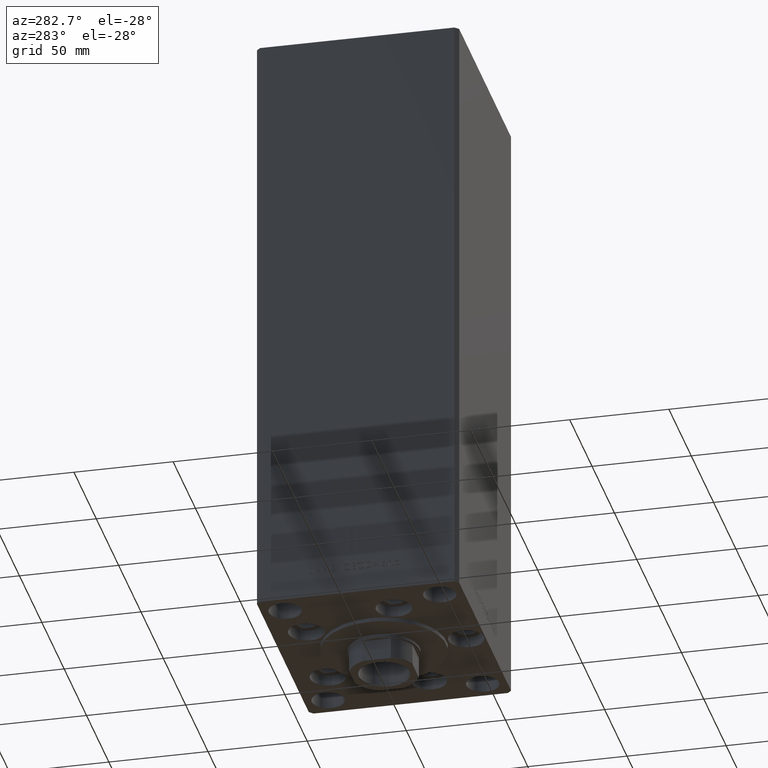
[diagram: clean part render]
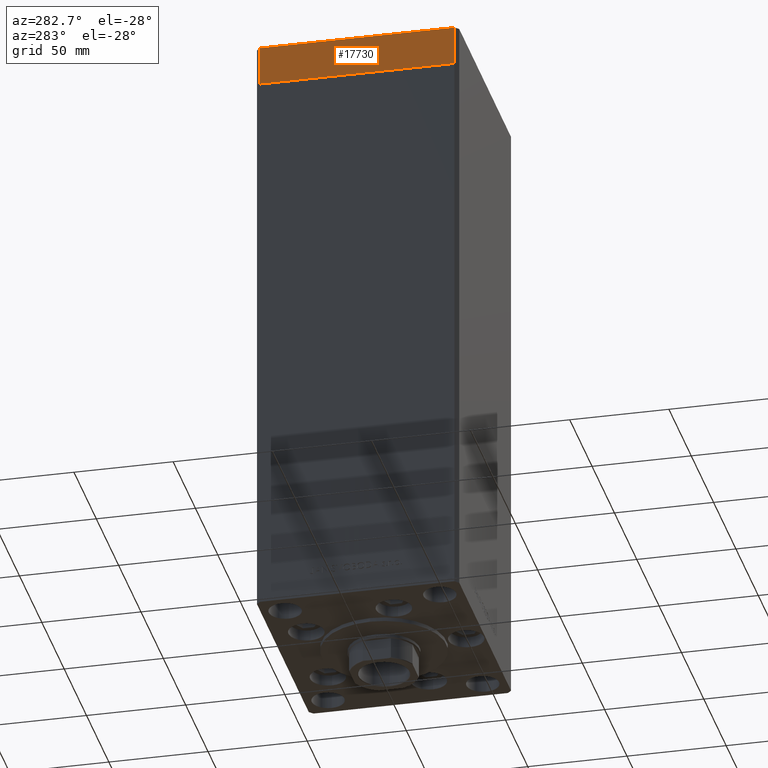
[diagram: same view with one face highlighted and labeled with its STEP entity id]
A machine part, auxiliary view. The second image highlights one B-rep face of the part: STEP entity #17730.
In plain terms, the highlighted planar face has unit normal (-1, 0, 0).
Its self-contained STEP definition (entity closure, byte-faithful):
#519 = CARTESIAN_POINT ( 'NONE',  ( -60.00000000000000000, 48.99999999999995737, -20.00000000000000000 ) ) ;
#2548 = CARTESIAN_POINT ( 'NONE',  ( -60.00000000000000000, 48.99999999999995737, 0.000000000000000000 ) ) ;
#3255 = VERTEX_POINT ( 'NONE', #39254 ) ;
#4088 = LINE ( 'NONE', #46557, #17501 ) ;
#5538 = ORIENTED_EDGE ( 'NONE', *, *, #13853, .T. ) ;
#10014 = CARTESIAN_POINT ( 'NONE',  ( -60.00000000000000000, -49.00000000000000000, -20.00000000000000000 ) ) ;
#13030 = DIRECTION ( 'NONE',  ( 0.000000000000000000, 0.000000000000000000, 1.000000000000000000 ) ) ;
#13044 = CARTESIAN_POINT ( 'NONE',  ( -60.00000000000000000, 48.99999999999995737, -20.00000000000000000 ) ) ;
#13664 = VERTEX_POINT ( 'NONE', #13044 ) ;
#13853 = EDGE_CURVE ( 'NONE', #13664, #27702, #4088, .T. ) ;
#14041 = EDGE_CURVE ( 'NONE', #24083, #3255, #17457, .T. ) ;
#15015 = EDGE_LOOP ( 'NONE', ( #38850, #42434, #5538, #26254 ) ) ;
#15186 = DIRECTION ( 'NONE',  ( 0.000000000000000000, 0.000000000000000000, 1.000000000000000000 ) ) ;
#17104 = CARTESIAN_POINT ( 'NONE',  ( -60.00000000000000000, 48.99999999999995737, -20.00000000000000000 ) ) ;
#17457 = LINE ( 'NONE', #2548, #28601 ) ;
#17501 = VECTOR ( 'NONE', #27196, 1000.000000000000000 ) ;
#17730 = ADVANCED_FACE ( 'NONE', ( #30561 ), #43697, .T. ) ;
#19157 = LINE ( 'NONE', #519, #25188 ) ;
#20743 = LINE ( 'NONE', #44103, #38729 ) ;
#21086 = DIRECTION ( 'NONE',  ( -1.000000000000000000, 0.000000000000000000, 0.000000000000000000 ) ) ;
#24083 = VERTEX_POINT ( 'NONE', #46831 ) ;
#25188 = VECTOR ( 'NONE', #15186, 1000.000000000000000 ) ;
#26254 = ORIENTED_EDGE ( 'NONE', *, *, #47026, .T. ) ;
#27196 = DIRECTION ( 'NONE',  ( 0.000000000000000000, -1.000000000000000000, 0.000000000000000000 ) ) ;
#27702 = VERTEX_POINT ( 'NONE', #10014 ) ;
#28601 = VECTOR ( 'NONE', #32858, 1000.000000000000000 ) ;
#30561 = FACE_OUTER_BOUND ( 'NONE', #15015, .T. ) ;
#32858 = DIRECTION ( 'NONE',  ( 0.000000000000000000, -1.000000000000000000, 0.000000000000000000 ) ) ;
#36247 = DIRECTION ( 'NONE',  ( 0.000000000000000000, 0.000000000000000000, 1.000000000000000000 ) ) ;
#38729 = VECTOR ( 'NONE', #13030, 1000.000000000000000 ) ;
#38850 = ORIENTED_EDGE ( 'NONE', *, *, #14041, .F. ) ;
#39254 = CARTESIAN_POINT ( 'NONE',  ( -60.00000000000000000, -49.00000000000000000, 0.000000000000000000 ) ) ;
#42434 = ORIENTED_EDGE ( 'NONE', *, *, #45352, .F. ) ;
#43697 = PLANE ( 'NONE',  #44621 ) ;
#44103 = CARTESIAN_POINT ( 'NONE',  ( -60.00000000000000000, -49.00000000000000000, -20.00000000000000000 ) ) ;
#44621 = AXIS2_PLACEMENT_3D ( 'NONE', #17104, #21086, #36247 ) ;
#45352 = EDGE_CURVE ( 'NONE', #13664, #24083, #19157, .T. ) ;
#46557 = CARTESIAN_POINT ( 'NONE',  ( -60.00000000000000000, 48.99999999999995737, -20.00000000000000000 ) ) ;
#46831 = CARTESIAN_POINT ( 'NONE',  ( -60.00000000000000000, 48.99999999999995737, 0.000000000000000000 ) ) ;
#47026 = EDGE_CURVE ( 'NONE', #27702, #3255, #20743, .T. ) ;